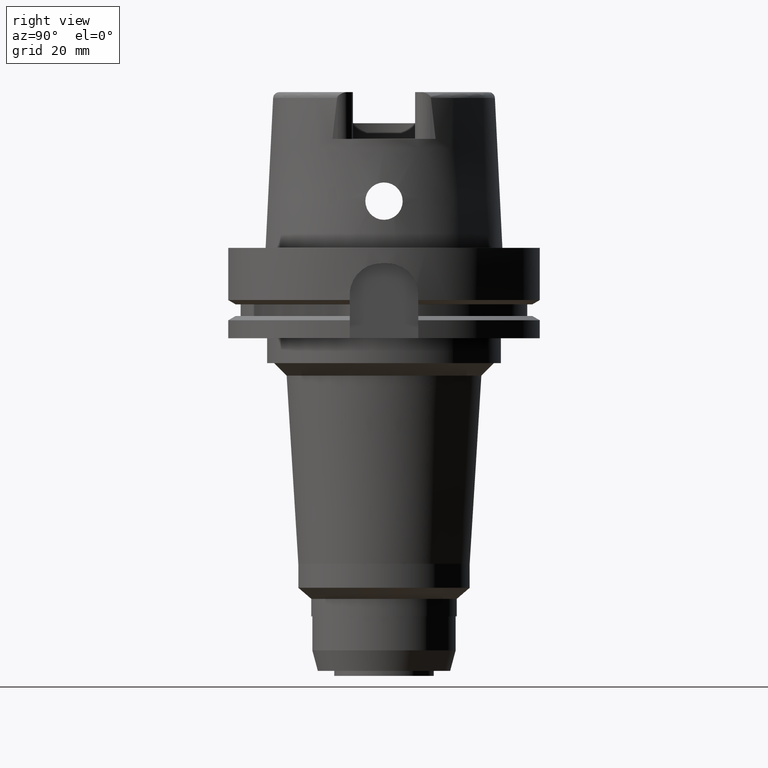
[diagram: clean part render]
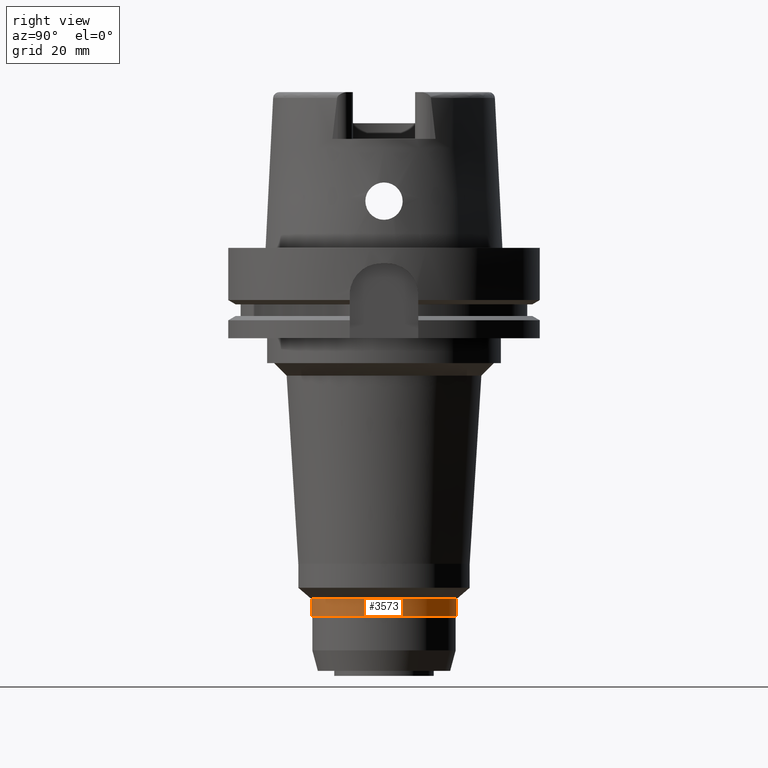
[diagram: same view with one face highlighted and labeled with its STEP entity id]
A machine part, right view. The second image highlights one B-rep face of the part: STEP entity #3573.
In plain terms, the highlighted cylindrical surface (partial cylindrical patch) has radius 23.35 mm, axis along (0, 0, 1).
Its self-contained STEP definition (entity closure, byte-faithful):
#1135=CARTESIAN_POINT('',(0.E0,0.E0,-1.183E2));
#1136=DIRECTION('',(0.E0,0.E0,1.E0));
#1137=DIRECTION('',(0.E0,-1.E0,0.E0));
#1138=AXIS2_PLACEMENT_3D('',#1135,#1136,#1137);
#1167=DIRECTION('',(0.E0,3.045891981130E-12,-1.E0));
#1168=VECTOR('',#1167,5.643019806520E0);
#1169=CARTESIAN_POINT('',(0.E0,2.334999999998E1,-1.126569801935E2));
#1170=LINE('',#1169,#1168);
#1174=DIRECTION('',(0.E0,-3.045891981130E-12,-1.E0));
#1175=VECTOR('',#1174,5.643019806520E0);
#1176=CARTESIAN_POINT('',(0.E0,-2.334999999998E1,-1.126569801935E2));
#1177=LINE('',#1176,#1175);
#1211=CARTESIAN_POINT('',(0.E0,0.E0,-1.126569801935E2));
#1212=DIRECTION('',(0.E0,0.E0,-1.E0));
#1213=DIRECTION('',(0.E0,1.E0,0.E0));
#1214=AXIS2_PLACEMENT_3D('',#1211,#1212,#1213);
#2540=CARTESIAN_POINT('',(0.E0,-2.335E1,-1.183E2));
#2541=CARTESIAN_POINT('',(0.E0,2.335E1,-1.183E2));
#2542=VERTEX_POINT('',#2540);
#2543=VERTEX_POINT('',#2541);
#2544=CARTESIAN_POINT('',(0.E0,2.334999999998E1,-1.126569801935E2));
#2545=VERTEX_POINT('',#2544);
#2546=CARTESIAN_POINT('',(0.E0,-2.334999999998E1,-1.126569801935E2));
#2547=VERTEX_POINT('',#2546);
#3559=CARTESIAN_POINT('',(0.E0,0.E0,-1.4677E2));
#3560=DIRECTION('',(0.E0,0.E0,1.E0));
#3561=DIRECTION('',(0.E0,1.E0,0.E0));
#3562=AXIS2_PLACEMENT_3D('',#3559,#3560,#3561);
#3563=CYLINDRICAL_SURFACE('',#3562,2.335E1);
#3565=ORIENTED_EDGE('',*,*,#3564,.T.);
#3566=ORIENTED_EDGE('',*,*,#3548,.F.);
#3568=ORIENTED_EDGE('',*,*,#3567,.F.);
#3570=ORIENTED_EDGE('',*,*,#3569,.F.);
#3571=EDGE_LOOP('',(#3565,#3566,#3568,#3570));
#3572=FACE_OUTER_BOUND('',#3571,.F.);
#1139=CIRCLE('',#1138,2.335E1);
#1215=CIRCLE('',#1214,2.334999999997E1);
#3548=EDGE_CURVE('',#2542,#2543,#1139,.T.);
#3564=EDGE_CURVE('',#2545,#2543,#1170,.T.);
#3567=EDGE_CURVE('',#2547,#2542,#1177,.T.);
#3569=EDGE_CURVE('',#2545,#2547,#1215,.T.);
#3573=ADVANCED_FACE('',(#3572),#3563,.T.);